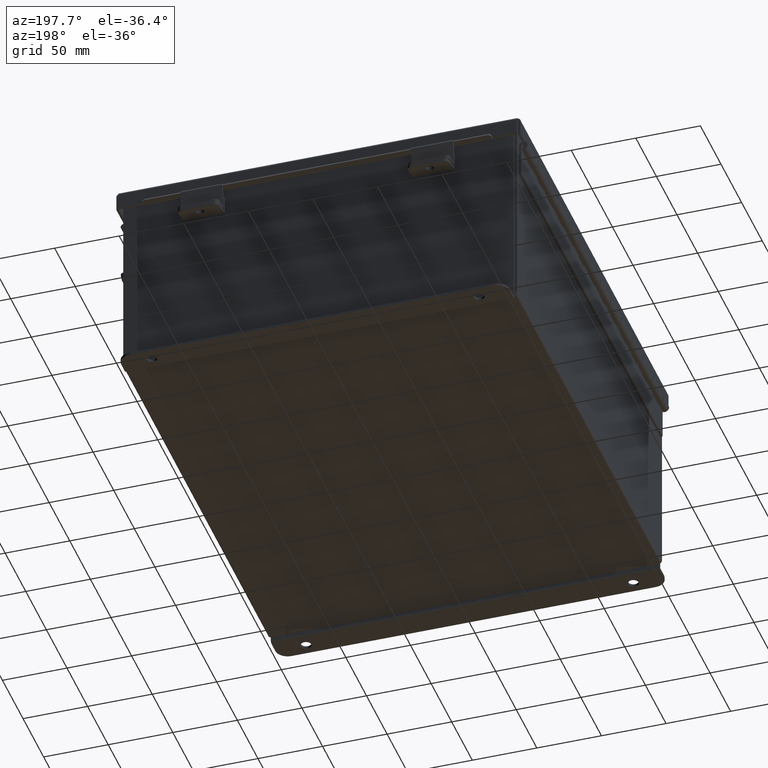
[diagram: clean part render]
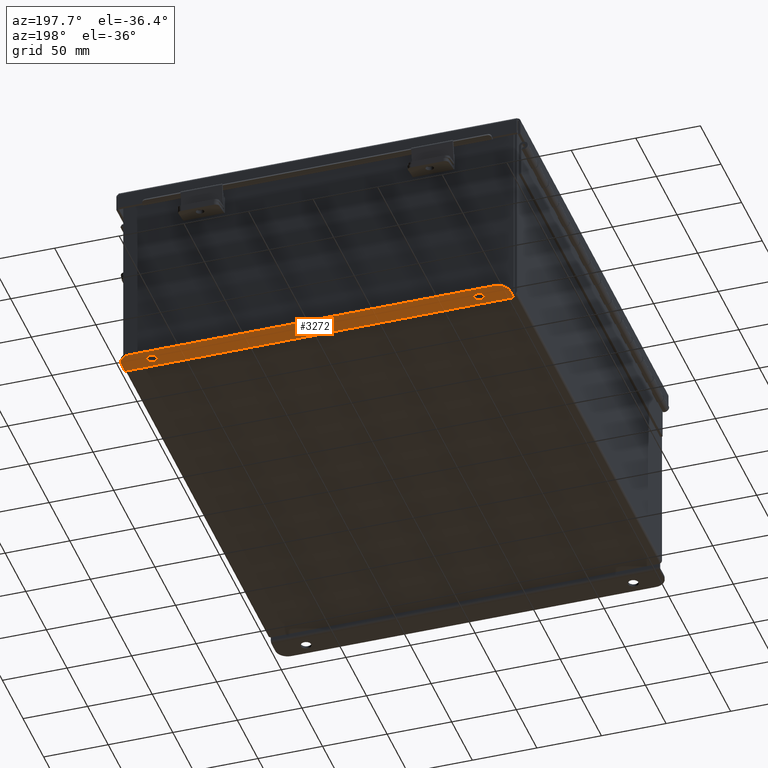
[diagram: same view with one face highlighted and labeled with its STEP entity id]
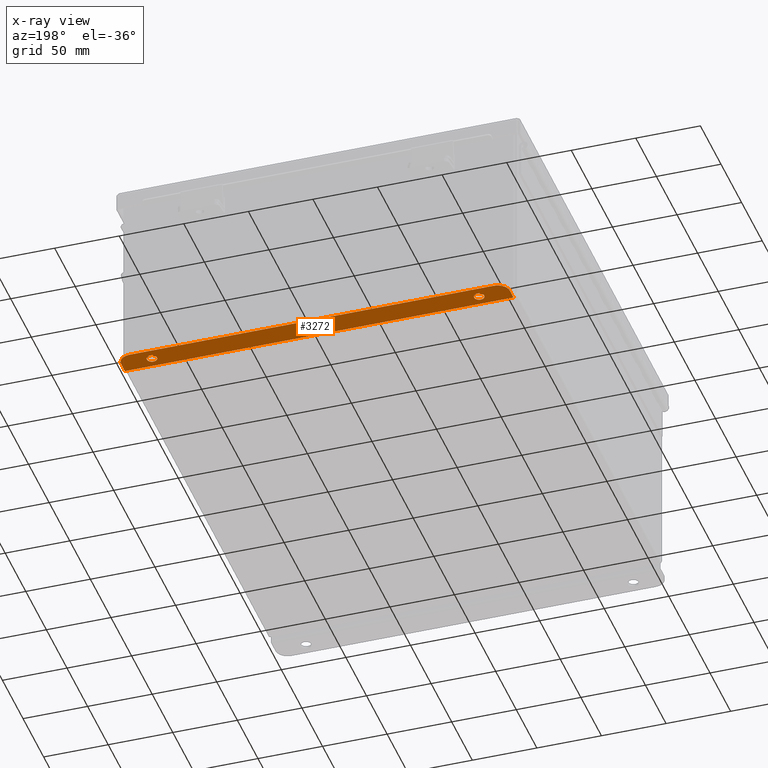
[diagram: x-ray of the same camera — body ghosted, the highlighted face saturated]
A machine part, auxiliary view. The second image highlights one B-rep face of the part: STEP entity #3272.
The next image is the same camera in x-ray: the body ghosted, the highlighted face saturated — about 0% of this face is hidden behind the body in this view.
In plain terms, the highlighted planar face has unit normal (0, 0, 1).
Its self-contained STEP definition (entity closure, byte-faithful):
#305 = DIRECTION ( 'NONE',  ( 0.0000000000000000000, -3.702694488566362300E-015, -1.000000000000000000 ) ) ;
#360 = VERTEX_POINT ( 'NONE', #13068 ) ;
#439 = DIRECTION ( 'NONE',  ( 0.0000000000000000000, -3.702694488566362300E-015, -1.000000000000000000 ) ) ;
#553 = EDGE_LOOP ( 'NONE', ( #7587, #4922, #14965, #18046, #10672, #1872 ) ) ;
#632 = AXIS2_PLACEMENT_3D ( 'NONE', #13743, #5007, #15229 ) ;
#896 = AXIS2_PLACEMENT_3D ( 'NONE', #14738, #16198, #7437 ) ;
#1015 = EDGE_CURVE ( 'NONE', #14065, #12901, #8534, .T. ) ;
#1130 = DIRECTION ( 'NONE',  ( 0.0000000000000000000, -1.000000000000000000, 4.370956789862820400E-015 ) ) ;
#1263 = CIRCLE ( 'NONE', #18155, 0.3750000000000000600 ) ;
#1360 = AXIS2_PLACEMENT_3D ( 'NONE', #13900, #5148, #15375 ) ;
#1425 = CARTESIAN_POINT ( 'NONE',  ( 5.925299999999999100, -1.092739197465705300E-014, -3.187000000000000300 ) ) ;
#1499 = CARTESIAN_POINT ( 'NONE',  ( -5.925300000000001800, 0.3627999999999997300, -3.187000000000001200 ) ) ;
#1600 = VERTEX_POINT ( 'NONE', #15312 ) ;
#1667 = FACE_OUTER_BOUND ( 'NONE', #553, .T. ) ;
#1872 = ORIENTED_EDGE ( 'NONE', *, *, #10219, .T. ) ;
#1929 = LINE ( 'NONE', #1425, #15654 ) ;
#2125 = VERTEX_POINT ( 'NONE', #4323 ) ;
#2161 = CIRCLE ( 'NONE', #632, 0.1560000000000001900 ) ;
#2213 = VERTEX_POINT ( 'NONE', #1499 ) ;
#2715 = CARTESIAN_POINT ( 'NONE',  ( 0.0000000000000000000, 0.7378000000000000100, -3.187000000000002900 ) ) ;
#2957 = CARTESIAN_POINT ( 'NONE',  ( 4.987799999999998200, 0.5187999999999999300, -3.187000000000001600 ) ) ;
#3142 = DIRECTION ( 'NONE',  ( 0.0000000000000000000, 1.000000000000000000, -3.702694488566362300E-015 ) ) ;
#3272 = ADVANCED_FACE ( 'NONE', ( #9414, #17221, #1667 ), #10315, .F. ) ;
#3679 = VERTEX_POINT ( 'NONE', #5272 ) ;
#3692 = CIRCLE ( 'NONE', #4342, 0.1560000000000001900 ) ;
#3937 = CIRCLE ( 'NONE', #14861, 0.1560000000000001900 ) ;
#4044 = EDGE_CURVE ( 'NONE', #5895, #2213, #6670, .T. ) ;
#4225 = VECTOR ( 'NONE', #14397, 39.37007874015748100 ) ;
#4323 = CARTESIAN_POINT ( 'NONE',  ( -4.987800000000000900, 0.2067999999999996000, -3.187000000000000700 ) ) ;
#4342 = AXIS2_PLACEMENT_3D ( 'NONE', #7023, #17258, #8464 ) ;
#4432 = EDGE_CURVE ( 'NONE', #12668, #1600, #3692, .T. ) ;
#4922 = ORIENTED_EDGE ( 'NONE', *, *, #10710, .T. ) ;
#5007 = DIRECTION ( 'NONE',  ( 0.0000000000000000000, -3.702694488566362300E-015, -1.000000000000000000 ) ) ;
#5148 = DIRECTION ( 'NONE',  ( -0.0000000000000000000, -3.702694488566362300E-015, -1.000000000000000000 ) ) ;
#5272 = CARTESIAN_POINT ( 'NONE',  ( 5.925299999999999100, 0.01300000000000010700, -3.187000000000000300 ) ) ;
#5297 = VECTOR ( 'NONE', #3142, 39.37007874015748100 ) ;
#5594 = CIRCLE ( 'NONE', #1360, 0.3750000000000000600 ) ;
#5895 = VERTEX_POINT ( 'NONE', #14818 ) ;
#6100 = VERTEX_POINT ( 'NONE', #9350 ) ;
#6381 = CARTESIAN_POINT ( 'NONE',  ( -5.550299999999999100, 0.7378000000000000100, -3.187000000000002900 ) ) ;
#6572 = ORIENTED_EDGE ( 'NONE', *, *, #4432, .F. ) ;
#6670 = LINE ( 'NONE', #14781, #5297 ) ;
#6726 = EDGE_CURVE ( 'NONE', #5895, #3679, #10274, .T. ) ;
#6794 = CIRCLE ( 'NONE', #13807, 0.1560000000000001900 ) ;
#7023 = CARTESIAN_POINT ( 'NONE',  ( 4.987799999999998200, 0.3627999999999997300, -3.187000000000001200 ) ) ;
#7437 = DIRECTION ( 'NONE',  ( 0.0000000000000000000, -1.000000000000000000, 3.702694488566362300E-015 ) ) ;
#7587 = ORIENTED_EDGE ( 'NONE', *, *, #1015, .T. ) ;
#8464 = DIRECTION ( 'NONE',  ( 0.0000000000000000000, 1.000000000000000000, -3.502369222646487000E-015 ) ) ;
#8534 = LINE ( 'NONE', #2715, #4225 ) ;
#8964 = EDGE_LOOP ( 'NONE', ( #6572, #16732 ) ) ;
#9043 = CARTESIAN_POINT ( 'NONE',  ( 4.987799999999998200, 0.3627999999999997300, -3.187000000000001200 ) ) ;
#9172 = CARTESIAN_POINT ( 'NONE',  ( -4.987800000000000900, 0.3627999999999997300, -3.187000000000001200 ) ) ;
#9350 = CARTESIAN_POINT ( 'NONE',  ( 5.925299999999999100, 0.3627999999999997300, -3.187000000000001200 ) ) ;
#9414 = FACE_BOUND ( 'NONE', #14634, .T. ) ;
#9867 = DIRECTION ( 'NONE',  ( -0.0000000000000000000, -3.702694488566362300E-015, -1.000000000000000000 ) ) ;
#9928 = CARTESIAN_POINT ( 'NONE',  ( 5.925299999999999100, 0.01300000000000010700, -3.187000000000000300 ) ) ;
#10219 = EDGE_CURVE ( 'NONE', #2213, #14065, #1263, .T. ) ;
#10274 = LINE ( 'NONE', #9928, #18079 ) ;
#10315 = PLANE ( 'NONE',  #896 ) ;
#10504 = ORIENTED_EDGE ( 'NONE', *, *, #17654, .F. ) ;
#10547 = DIRECTION ( 'NONE',  ( 0.0000000000000000000, 1.000000000000000000, -3.502369222646487000E-015 ) ) ;
#10672 = ORIENTED_EDGE ( 'NONE', *, *, #4044, .T. ) ;
#10686 = DIRECTION ( 'NONE',  ( 0.0000000000000000000, 1.000000000000000000, -3.502369222646487000E-015 ) ) ;
#10710 = EDGE_CURVE ( 'NONE', #12901, #6100, #5594, .T. ) ;
#11035 = EDGE_CURVE ( 'NONE', #6100, #3679, #1929, .T. ) ;
#11208 = EDGE_CURVE ( 'NONE', #2125, #360, #2161, .T. ) ;
#12611 = EDGE_CURVE ( 'NONE', #1600, #12668, #3937, .T. ) ;
#12668 = VERTEX_POINT ( 'NONE', #2957 ) ;
#12901 = VERTEX_POINT ( 'NONE', #13627 ) ;
#13068 = CARTESIAN_POINT ( 'NONE',  ( -4.987800000000000900, 0.5187999999999999300, -3.187000000000001600 ) ) ;
#13627 = CARTESIAN_POINT ( 'NONE',  ( 5.550299999999999100, 0.7378000000000000100, -3.187000000000002900 ) ) ;
#13743 = CARTESIAN_POINT ( 'NONE',  ( -4.987800000000000900, 0.3627999999999997300, -3.187000000000001200 ) ) ;
#13807 = AXIS2_PLACEMENT_3D ( 'NONE', #9172, #439, #10686 ) ;
#13900 = CARTESIAN_POINT ( 'NONE',  ( 5.550299999999999100, 0.3627999999999997300, -3.187000000000001200 ) ) ;
#14065 = VERTEX_POINT ( 'NONE', #6381 ) ;
#14397 = DIRECTION ( 'NONE',  ( 1.000000000000000000, 0.0000000000000000000, -0.0000000000000000000 ) ) ;
#14634 = EDGE_LOOP ( 'NONE', ( #10504, #17468 ) ) ;
#14738 = CARTESIAN_POINT ( 'NONE',  ( 0.0000000000000000000, -1.092739197465705300E-014, -3.187000000000000300 ) ) ;
#14781 = CARTESIAN_POINT ( 'NONE',  ( -5.925300000000001800, -1.092739197465705300E-014, -3.187000000000000300 ) ) ;
#14818 = CARTESIAN_POINT ( 'NONE',  ( -5.925300000000000000, 0.01300000000000010700, -3.187000000000000300 ) ) ;
#14861 = AXIS2_PLACEMENT_3D ( 'NONE', #9043, #305, #10547 ) ;
#14965 = ORIENTED_EDGE ( 'NONE', *, *, #11035, .T. ) ;
#15229 = DIRECTION ( 'NONE',  ( 0.0000000000000000000, 1.000000000000000000, -3.502369222646487000E-015 ) ) ;
#15312 = CARTESIAN_POINT ( 'NONE',  ( 4.987799999999998200, 0.2067999999999996000, -3.187000000000000700 ) ) ;
#15375 = DIRECTION ( 'NONE',  ( 0.0000000000000000000, -1.000000000000000000, 4.370956789862820400E-015 ) ) ;
#15654 = VECTOR ( 'NONE', #18968, 39.37007874015748100 ) ;
#16198 = DIRECTION ( 'NONE',  ( 0.0000000000000000000, 3.702694488566362300E-015, 1.000000000000000000 ) ) ;
#16732 = ORIENTED_EDGE ( 'NONE', *, *, #12611, .F. ) ;
#17221 = FACE_BOUND ( 'NONE', #8964, .T. ) ;
#17258 = DIRECTION ( 'NONE',  ( 0.0000000000000000000, -3.702694488566362300E-015, -1.000000000000000000 ) ) ;
#17468 = ORIENTED_EDGE ( 'NONE', *, *, #11208, .F. ) ;
#17654 = EDGE_CURVE ( 'NONE', #360, #2125, #6794, .T. ) ;
#18046 = ORIENTED_EDGE ( 'NONE', *, *, #6726, .F. ) ;
#18079 = VECTOR ( 'NONE', #18729, 39.37007874015748100 ) ;
#18155 = AXIS2_PLACEMENT_3D ( 'NONE', #18671, #9867, #1130 ) ;
#18671 = CARTESIAN_POINT ( 'NONE',  ( -5.550299999999999100, 0.3627999999999997300, -3.187000000000001200 ) ) ;
#18729 = DIRECTION ( 'NONE',  ( 1.000000000000000000, -0.0000000000000000000, -0.0000000000000000000 ) ) ;
#18968 = DIRECTION ( 'NONE',  ( 0.0000000000000000000, -1.000000000000000000, 3.702694488566362300E-015 ) ) ;